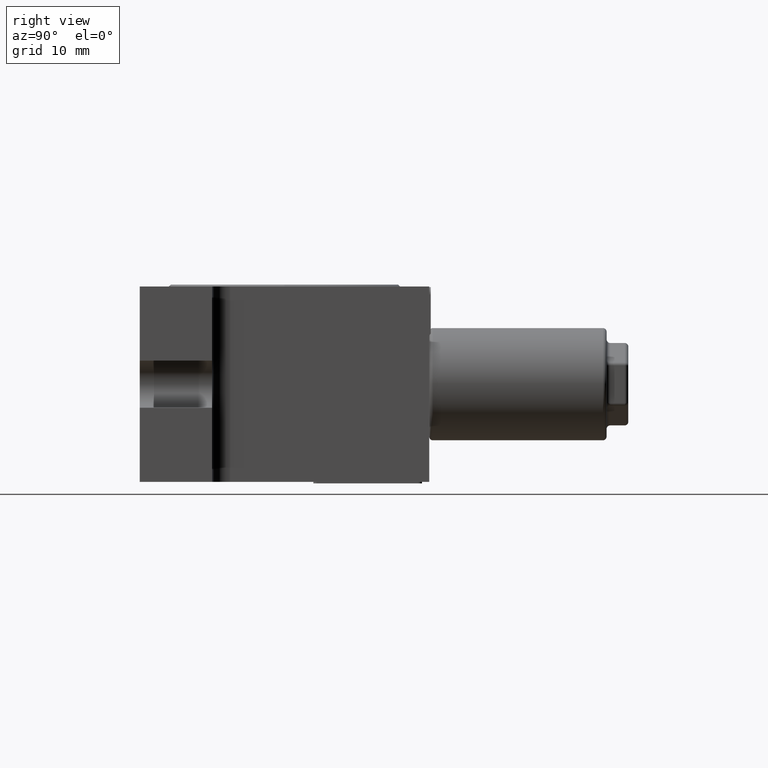
[diagram: clean part render]
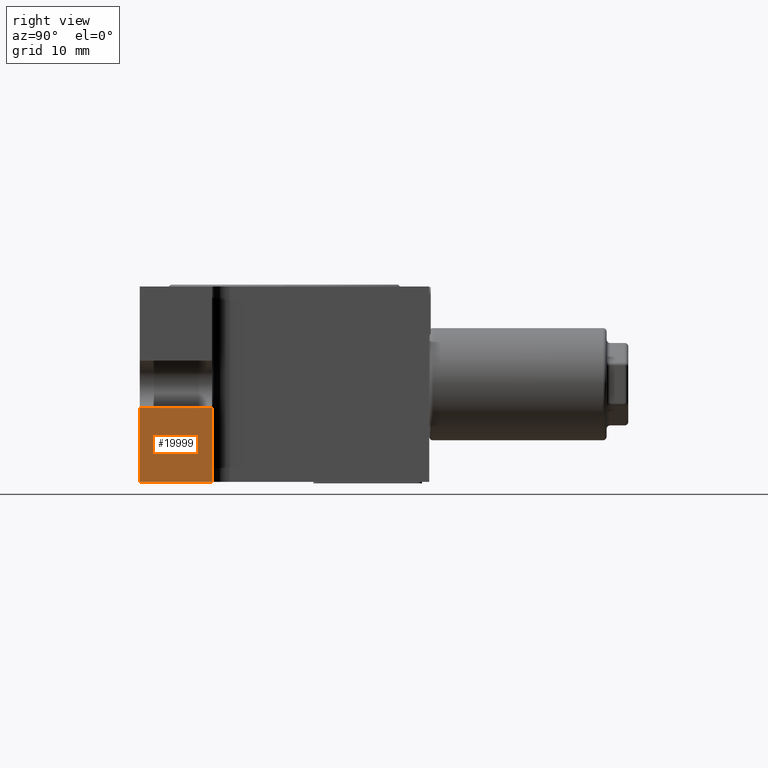
[diagram: same view with one face highlighted and labeled with its STEP entity id]
A machine part, right view. The second image highlights one B-rep face of the part: STEP entity #19999.
In plain terms, the highlighted planar face has unit normal (-1, 0, 0).
Its self-contained STEP definition (entity closure, byte-faithful):
#106 = DIRECTION ( 'NONE',  ( 0.0000000000000000000, 1.000000000000000000, 0.0000000000000000000 ) ) ;
#1901 = DIRECTION ( 'NONE',  ( -1.000000000000000000, 0.0000000000000000000, 0.0000000000000000000 ) ) ;
#2166 = EDGE_CURVE ( 'NONE', #21865, #12230, #7604, .T. ) ;
#3865 = VECTOR ( 'NONE', #106, 1000.000000000000000 ) ;
#5428 = DIRECTION ( 'NONE',  ( 0.0000000000000000000, 1.000000000000000000, 0.0000000000000000000 ) ) ;
#5475 = VECTOR ( 'NONE', #19401, 1000.000000000000000 ) ;
#5587 = ORIENTED_EDGE ( 'NONE', *, *, #17120, .F. ) ;
#5761 = CARTESIAN_POINT ( 'NONE',  ( 35.00000000000000000, -10.00000000000000000, -3.250000000000000000 ) ) ;
#5945 = VECTOR ( 'NONE', #5428, 1000.000000000000000 ) ;
#6102 = CARTESIAN_POINT ( 'NONE',  ( 35.00000000000000000, -10.00000000000000000, -13.50000000000000000 ) ) ;
#7604 = LINE ( 'NONE', #17865, #19621 ) ;
#8650 = EDGE_CURVE ( 'NONE', #10300, #13108, #18557, .T. ) ;
#9134 = AXIS2_PLACEMENT_3D ( 'NONE', #16613, #1901, #20082 ) ;
#9940 = EDGE_LOOP ( 'NONE', ( #22110, #5587, #20428, #18752 ) ) ;
#10300 = VERTEX_POINT ( 'NONE', #23144 ) ;
#10765 = LINE ( 'NONE', #18300, #5945 ) ;
#11062 = CARTESIAN_POINT ( 'NONE',  ( 35.00000000000000000, -20.00000000000000000, -3.250000000000000000 ) ) ;
#11253 = CARTESIAN_POINT ( 'NONE',  ( 35.00000000000000000, -20.00000000000000000, -13.50000000000000000 ) ) ;
#12230 = VERTEX_POINT ( 'NONE', #5761 ) ;
#12710 = PLANE ( 'NONE',  #9134 ) ;
#13108 = VERTEX_POINT ( 'NONE', #11253 ) ;
#14553 = EDGE_CURVE ( 'NONE', #13108, #21865, #10765, .T. ) ;
#15729 = CARTESIAN_POINT ( 'NONE',  ( 35.00000000000000000, -20.00000000000000000, 13.50000000000000000 ) ) ;
#16613 = CARTESIAN_POINT ( 'NONE',  ( 35.00000000000000000, -20.00000000000000000, 13.50000000000000000 ) ) ;
#17120 = EDGE_CURVE ( 'NONE', #10300, #12230, #20966, .T. ) ;
#17865 = CARTESIAN_POINT ( 'NONE',  ( 35.00000000000000000, -10.00000000000000000, -13.50000000000000000 ) ) ;
#18300 = CARTESIAN_POINT ( 'NONE',  ( 35.00000000000000000, -20.00000000000000000, -13.50000000000000000 ) ) ;
#18405 = DIRECTION ( 'NONE',  ( 0.0000000000000000000, 0.0000000000000000000, 1.000000000000000000 ) ) ;
#18557 = LINE ( 'NONE', #15729, #5475 ) ;
#18752 = ORIENTED_EDGE ( 'NONE', *, *, #14553, .T. ) ;
#19401 = DIRECTION ( 'NONE',  ( 0.0000000000000000000, 0.0000000000000000000, -1.000000000000000000 ) ) ;
#19621 = VECTOR ( 'NONE', #18405, 1000.000000000000000 ) ;
#19999 = ADVANCED_FACE ( 'NONE', ( #21039 ), #12710, .F. ) ;
#20082 = DIRECTION ( 'NONE',  ( 0.0000000000000000000, 0.0000000000000000000, 1.000000000000000000 ) ) ;
#20428 = ORIENTED_EDGE ( 'NONE', *, *, #8650, .T. ) ;
#20966 = LINE ( 'NONE', #11062, #3865 ) ;
#21039 = FACE_OUTER_BOUND ( 'NONE', #9940, .T. ) ;
#21865 = VERTEX_POINT ( 'NONE', #6102 ) ;
#22110 = ORIENTED_EDGE ( 'NONE', *, *, #2166, .T. ) ;
#23144 = CARTESIAN_POINT ( 'NONE',  ( 35.00000000000000000, -20.00000000000000000, -3.250000000000000000 ) ) ;